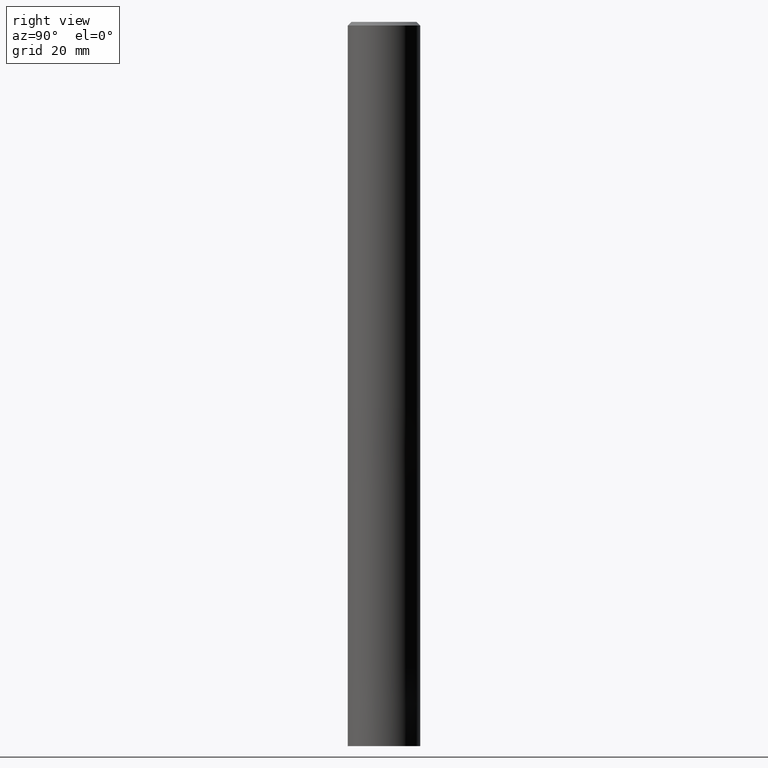
[diagram: clean part render]
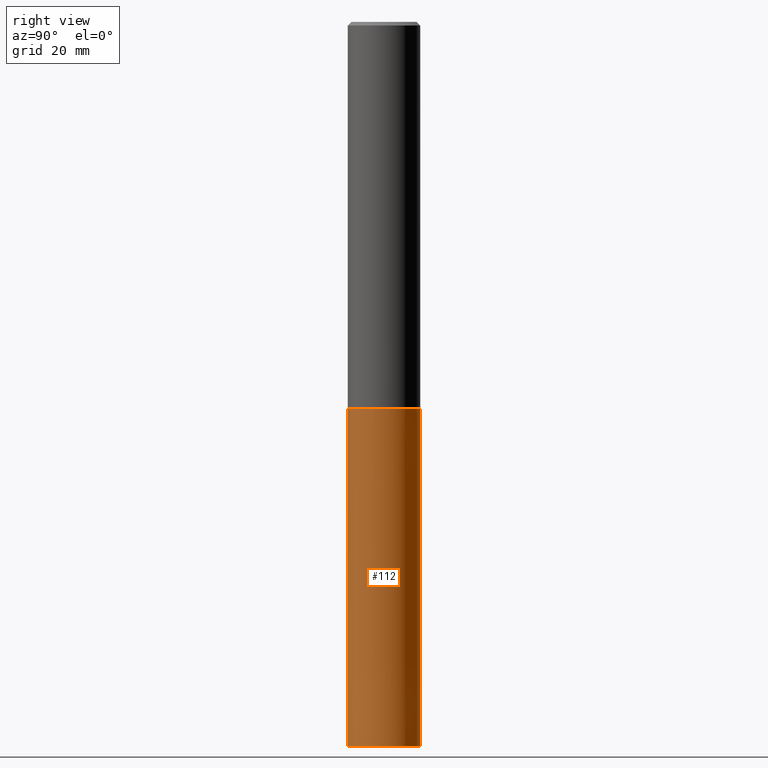
[diagram: same view with one face highlighted and labeled with its STEP entity id]
A machine part, right view. The second image highlights one B-rep face of the part: STEP entity #112.
In plain terms, the highlighted conical surface has half-angle 0 deg.
Its self-contained STEP definition (entity closure, byte-faithful):
#98=EDGE_CURVE('',#166,#188,#243,.T.);
#112=ADVANCED_FACE('',(#259),#260,.T.);
#124=VERTEX_POINT('',#274);
#166=VERTEX_POINT('',#323);
#176=EDGE_CURVE('',#208,#166,#333,.T.);
#188=VERTEX_POINT('',#347);
#192=EDGE_CURVE('',#124,#208,#351,.T.);
#208=VERTEX_POINT('',#370);
#214=EDGE_CURVE('',#124,#188,#376,.T.);
#243=LINE('',#401,#402);
#259=FACE_OUTER_BOUND('',#419,.T.);
#260=CONICAL_SURFACE('',#420,5.99995,1.78571428570823E-006);
#274=CARTESIAN_POINT('',(0.0,5.9999,-64.0));
#323=CARTESIAN_POINT('',(7.34763812293426E-016,-6.0,-120.0));
#333=CIRCLE('',#506,6.0);
#347=CARTESIAN_POINT('',(7.34751566229888E-016,-5.9999,-64.0));
#351=LINE('',#530,#531);
#370=CARTESIAN_POINT('',(0.0,6.0,-120.0));
#376=CIRCLE('',#565,5.9999);
#401=CARTESIAN_POINT('',(7.34757689261657E-016,-5.99995,-92.0));
#402=VECTOR('',#577,1.0);
#419=EDGE_LOOP('',(#594,#595,#596,#597));
#420=AXIS2_PLACEMENT_3D('',#598,#599,#600);
#506=AXIS2_PLACEMENT_3D('',#687,#688,#689);
#530=CARTESIAN_POINT('',(-7.34757689261658E-016,5.99995,-92.0));
#531=VECTOR('',#711,1.0);
#565=AXIS2_PLACEMENT_3D('',#743,#744,#745);
#577=DIRECTION('',(-2.18679706038852E-022,1.78571428570728E-006,0.999999999998406));
#594=ORIENTED_EDGE('',*,*,#192,.F.);
#595=ORIENTED_EDGE('',*,*,#214,.T.);
#596=ORIENTED_EDGE('',*,*,#98,.F.);
#597=ORIENTED_EDGE('',*,*,#176,.F.);
#598=CARTESIAN_POINT('',(0.0,0.0,-92.0));
#599=DIRECTION('',(0.0,-0.0,-1.0));
#600=DIRECTION('',(0.0,1.0,0.0));
#687=CARTESIAN_POINT('',(0.0,0.0,-120.0));
#688=DIRECTION('',(0.0,0.0,-1.0));
#689=DIRECTION('',(0.0,1.0,0.0));
#711=DIRECTION('',(-2.18679706038852E-022,1.78571428570728E-006,-0.999999999998406));
#743=CARTESIAN_POINT('',(0.0,0.0,-64.0));
#744=DIRECTION('',(0.0,0.0,-1.0));
#745=DIRECTION('',(0.0,1.0,0.0));